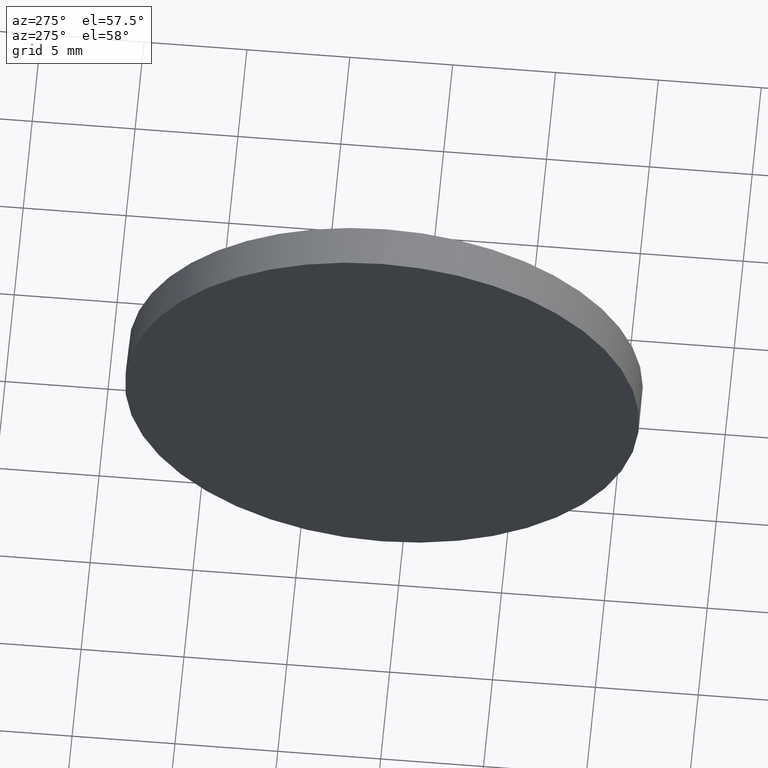
[diagram: clean part render]
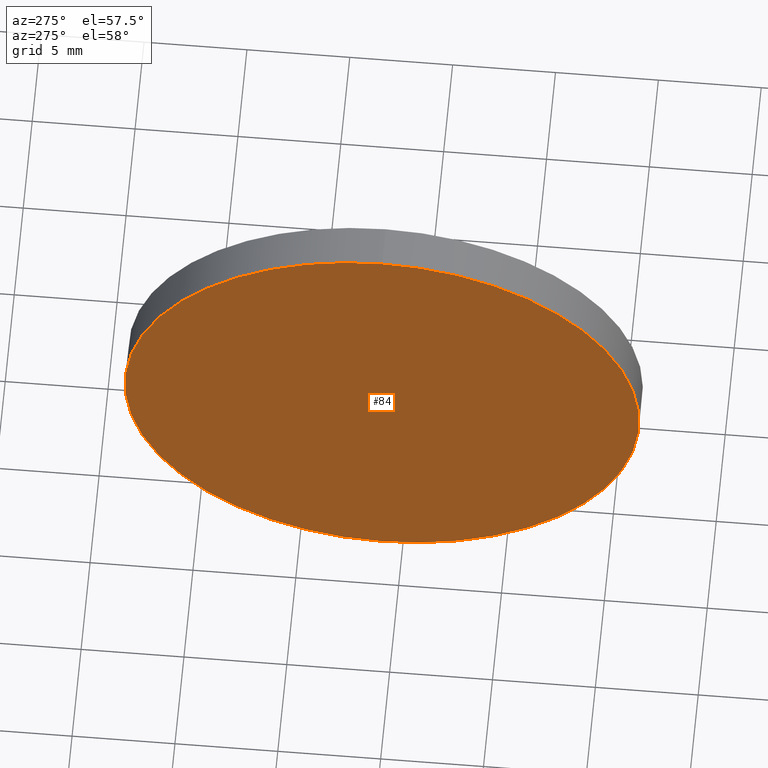
[diagram: same view with one face highlighted and labeled with its STEP entity id]
A machine part, auxiliary view. The second image highlights one B-rep face of the part: STEP entity #84.
In plain terms, the highlighted planar face has unit normal (1, 0, 0).
Its self-contained STEP definition (entity closure, byte-faithful):
#3 = AXIS2_PLACEMENT_3D ( 'NONE', #17, #56, #87 ) ;
#4 = PLANE ( 'NONE',  #3 ) ;
#13 = FACE_OUTER_BOUND ( 'NONE', #14, .T. ) ;
#14 = EDGE_LOOP ( 'NONE', ( #101, #180 ) ) ;
#17 = CARTESIAN_POINT ( 'NONE',  ( 462.1129067286656200, 60.99120596055025300, 0.0000000000000000000 ) ) ;
#37 = VERTEX_POINT ( 'NONE', #73 ) ;
#40 = AXIS2_PLACEMENT_3D ( 'NONE', #164, #90, #121 ) ;
#56 = DIRECTION ( 'NONE',  ( 1.000000000000000000, 0.0000000000000000000, 0.0000000000000000000 ) ) ;
#58 = CARTESIAN_POINT ( 'NONE',  ( 462.1129067286656200, 60.99120596055025300, -12.50000000000000400 ) ) ;
#68 = CIRCLE ( 'NONE', #40, 12.50000000000000400 ) ;
#73 = CARTESIAN_POINT ( 'NONE',  ( 462.1129067286656200, 60.99120596055025300, 12.50000000000000400 ) ) ;
#76 = CARTESIAN_POINT ( 'NONE',  ( 462.1129067286656200, 60.99120596055025300, 0.0000000000000000000 ) ) ;
#77 = DIRECTION ( 'NONE',  ( 0.0000000000000000000, 0.0000000000000000000, 1.000000000000000000 ) ) ;
#84 = ADVANCED_FACE ( 'NONE', ( #13 ), #4, .F. ) ;
#86 = AXIS2_PLACEMENT_3D ( 'NONE', #76, #178, #77 ) ;
#87 = DIRECTION ( 'NONE',  ( 0.0000000000000000000, 0.0000000000000000000, -1.000000000000000000 ) ) ;
#90 = DIRECTION ( 'NONE',  ( -1.000000000000000000, -0.0000000000000000000, -0.0000000000000000000 ) ) ;
#101 = ORIENTED_EDGE ( 'NONE', *, *, #120, .T. ) ;
#110 = EDGE_CURVE ( 'NONE', #114, #37, #68, .T. ) ;
#114 = VERTEX_POINT ( 'NONE', #58 ) ;
#120 = EDGE_CURVE ( 'NONE', #37, #114, #165, .T. ) ;
#121 = DIRECTION ( 'NONE',  ( 0.0000000000000000000, 0.0000000000000000000, 1.000000000000000000 ) ) ;
#164 = CARTESIAN_POINT ( 'NONE',  ( 462.1129067286656200, 60.99120596055025300, 0.0000000000000000000 ) ) ;
#165 = CIRCLE ( 'NONE', #86, 12.50000000000000400 ) ;
#178 = DIRECTION ( 'NONE',  ( -1.000000000000000000, -0.0000000000000000000, -0.0000000000000000000 ) ) ;
#180 = ORIENTED_EDGE ( 'NONE', *, *, #110, .T. ) ;